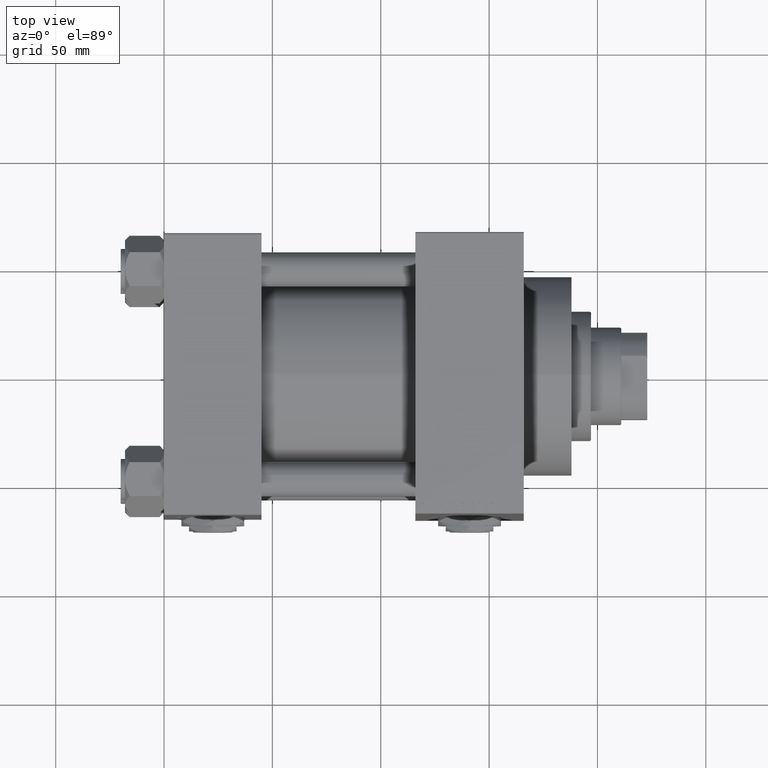
[diagram: clean part render]
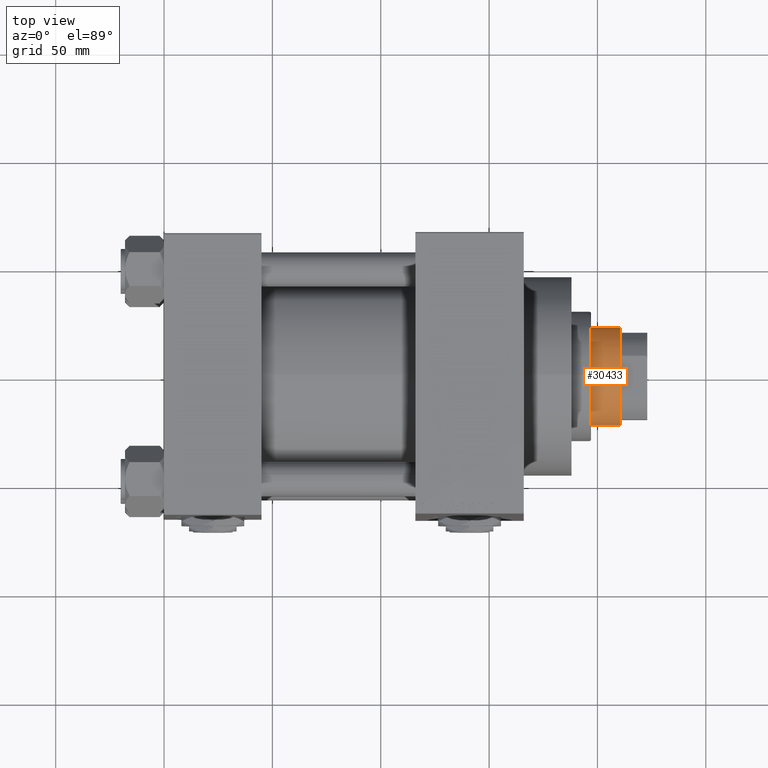
[diagram: same view with one face highlighted and labeled with its STEP entity id]
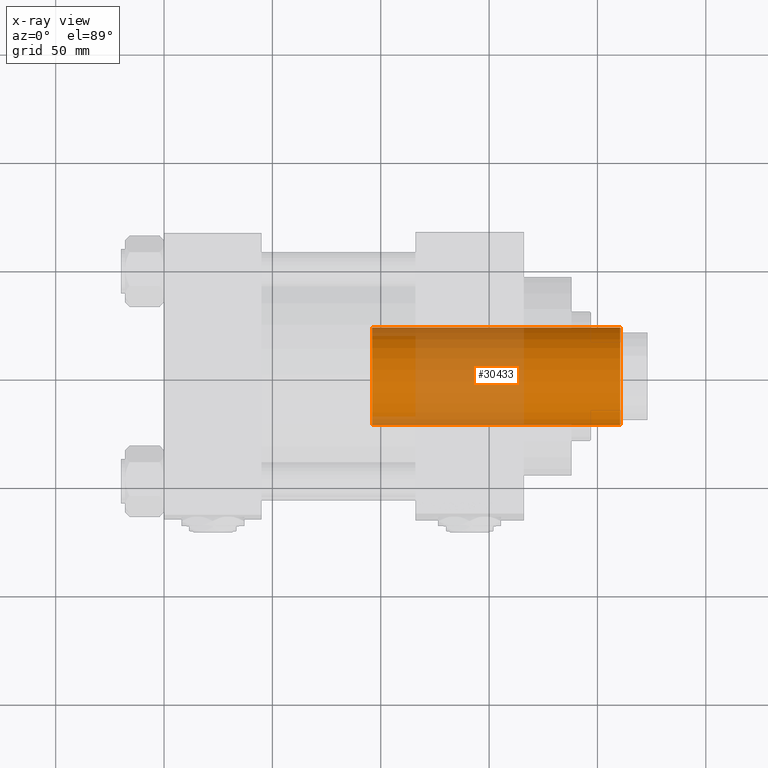
[diagram: x-ray of the same camera — body ghosted, the highlighted face saturated]
A machine part, top view. The second image highlights one B-rep face of the part: STEP entity #30433.
The next image is the same camera in x-ray: the body ghosted, the highlighted face saturated — about 47% of this face is hidden behind the body in this view.
In plain terms, the highlighted cylindrical surface (partial cylindrical patch) has radius 22.5 mm, axis along (-1, 0, 0).
Its self-contained STEP definition (entity closure, byte-faithful):
#2585 = FACE_OUTER_BOUND ( 'NONE', #25730, .T. ) ;
#4026 = ORIENTED_EDGE ( 'NONE', *, *, #23603, .T. ) ;
#6568 = AXIS2_PLACEMENT_3D ( 'NONE', #14313, #18583, #30154 ) ;
#8186 = DIRECTION ( 'NONE',  ( -0.000000000000000000, -0.000000000000000000, -1.000000000000000000 ) ) ;
#8653 = ORIENTED_EDGE ( 'NONE', *, *, #31001, .T. ) ;
#10130 = DIRECTION ( 'NONE',  ( -0.000000000000000000, -0.000000000000000000, -1.000000000000000000 ) ) ;
#11252 = ORIENTED_EDGE ( 'NONE', *, *, #35044, .F. ) ;
#13652 = CARTESIAN_POINT ( 'NONE',  ( 0.000000000000000000, 0.000000000000000000, 165.4999999999999716 ) ) ;
#13689 = DIRECTION ( 'NONE',  ( -0.000000000000000000, -0.000000000000000000, -1.000000000000000000 ) ) ;
#13902 = CARTESIAN_POINT ( 'NONE',  ( 0.000000000000000000, 0.000000000000000000, 166.0000000000000000 ) ) ;
#14313 = CARTESIAN_POINT ( 'NONE',  ( 0.000000000000000000, 0.000000000000000000, 51.00000000000000000 ) ) ;
#14741 = AXIS2_PLACEMENT_3D ( 'NONE', #13902, #10130, #25479 ) ;
#15065 = CIRCLE ( 'NONE', #38375, 22.50000000000000355 ) ;
#18085 = VECTOR ( 'NONE', #8186, 1000.000000000000000 ) ;
#18583 = DIRECTION ( 'NONE',  ( 0.000000000000000000, 0.000000000000000000, 1.000000000000000000 ) ) ;
#21207 = DIRECTION ( 'NONE',  ( 1.000000000000000000, 0.000000000000000000, 0.000000000000000000 ) ) ;
#23603 = EDGE_CURVE ( 'NONE', #24368, #26481, #36324, .T. ) ;
#24368 = VERTEX_POINT ( 'NONE', #24649 ) ;
#24649 = CARTESIAN_POINT ( 'NONE',  ( -22.50000000000000355, 0.000000000000000000, 51.00000000000000000 ) ) ;
#25479 = DIRECTION ( 'NONE',  ( -1.000000000000000000, 0.000000000000000000, 0.000000000000000000 ) ) ;
#25730 = EDGE_LOOP ( 'NONE', ( #11252, #27051, #8653, #4026 ) ) ;
#26481 = VERTEX_POINT ( 'NONE', #29447 ) ;
#27051 = ORIENTED_EDGE ( 'NONE', *, *, #42956, .T. ) ;
#27556 = LINE ( 'NONE', #28303, #18085 ) ;
#28146 = CARTESIAN_POINT ( 'NONE',  ( 22.50000000000000355, 2.755455298081545172E-15, 165.4999999999999716 ) ) ;
#28303 = CARTESIAN_POINT ( 'NONE',  ( 22.50000000000000355, 2.755455298081545172E-15, 166.0000000000000000 ) ) ;
#29447 = CARTESIAN_POINT ( 'NONE',  ( 22.50000000000000355, 2.755455298081545172E-15, 51.00000000000000000 ) ) ;
#30019 = LINE ( 'NONE', #45398, #40458 ) ;
#30154 = DIRECTION ( 'NONE',  ( 1.000000000000000000, 0.000000000000000000, 0.000000000000000000 ) ) ;
#30433 = ADVANCED_FACE ( 'NONE', ( #2585 ), #48401, .T. ) ;
#31001 = EDGE_CURVE ( 'NONE', #31126, #24368, #30019, .T. ) ;
#31126 = VERTEX_POINT ( 'NONE', #48057 ) ;
#35044 = EDGE_CURVE ( 'NONE', #49523, #26481, #27556, .T. ) ;
#36324 = CIRCLE ( 'NONE', #6568, 22.50000000000000355 ) ;
#38375 = AXIS2_PLACEMENT_3D ( 'NONE', #13652, #40359, #21207 ) ;
#40359 = DIRECTION ( 'NONE',  ( 0.000000000000000000, 0.000000000000000000, -1.000000000000000000 ) ) ;
#40458 = VECTOR ( 'NONE', #13689, 1000.000000000000000 ) ;
#42956 = EDGE_CURVE ( 'NONE', #49523, #31126, #15065, .T. ) ;
#45398 = CARTESIAN_POINT ( 'NONE',  ( -22.50000000000000355, 0.000000000000000000, 166.0000000000000000 ) ) ;
#48057 = CARTESIAN_POINT ( 'NONE',  ( -22.50000000000000355, 0.000000000000000000, 165.4999999999999716 ) ) ;
#48401 = CYLINDRICAL_SURFACE ( 'NONE', #14741, 22.50000000000000355 ) ;
#49523 = VERTEX_POINT ( 'NONE', #28146 ) ;